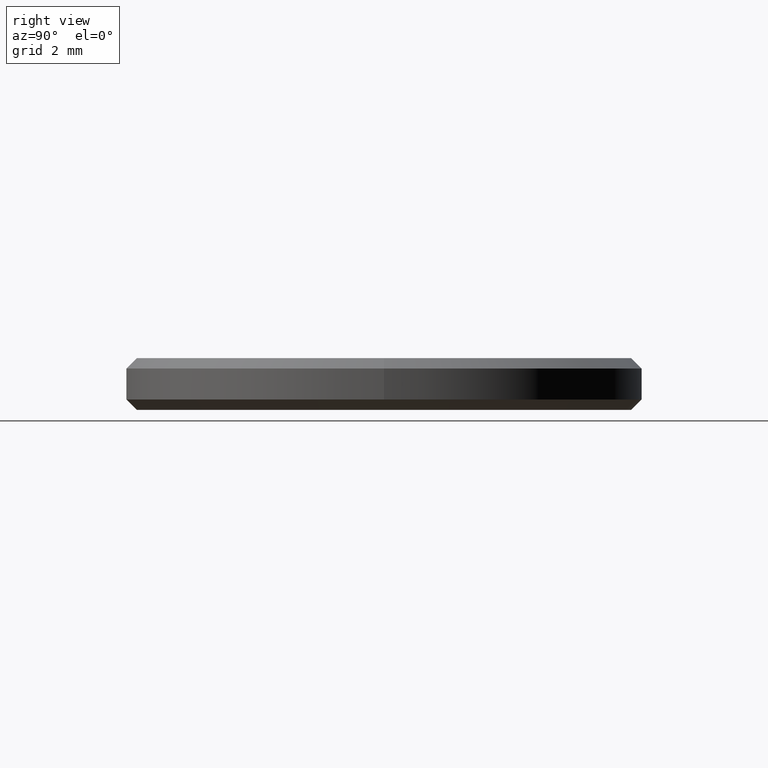
[diagram: clean part render]
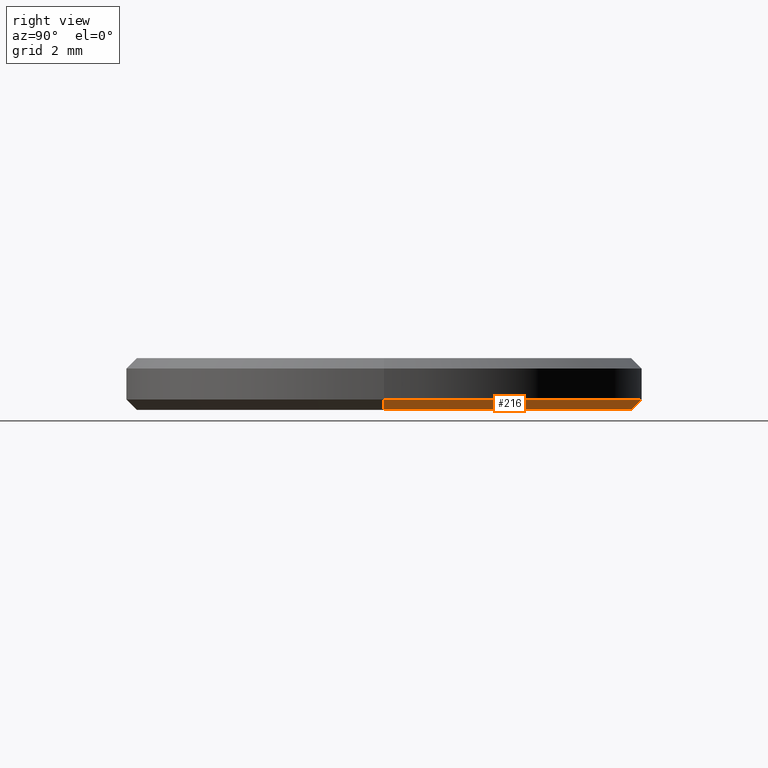
[diagram: same view with one face highlighted and labeled with its STEP entity id]
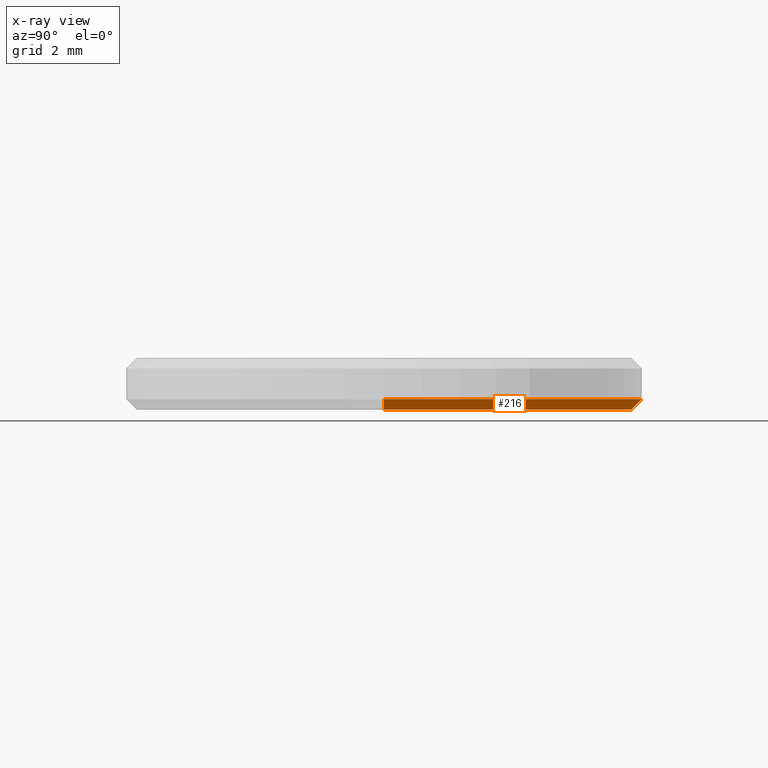
[diagram: x-ray of the same camera — body ghosted, the highlighted face saturated]
A machine part, right view. The second image highlights one B-rep face of the part: STEP entity #216.
The next image is the same camera in x-ray: the body ghosted, the highlighted face saturated — about 0% of this face is hidden behind the body in this view.
In plain terms, the highlighted conical surface has half-angle 45 deg.
Its self-contained STEP definition (entity closure, byte-faithful):
#6 = DIRECTION ( 'NONE',  ( 1.000000000000000000, 0.000000000000000000, 0.000000000000000000 ) ) ;
#7 = FACE_OUTER_BOUND ( 'NONE', #237, .T. ) ;
#25 = DIRECTION ( 'NONE',  ( 1.000000000000000000, 0.000000000000000000, 0.000000000000000000 ) ) ;
#32 = VECTOR ( 'NONE', #195, 1000.000000000000000 ) ;
#37 = VERTEX_POINT ( 'NONE', #57 ) ;
#39 = VERTEX_POINT ( 'NONE', #150 ) ;
#45 = DIRECTION ( 'NONE',  ( -0.000000000000000000, -0.000000000000000000, 1.000000000000000000 ) ) ;
#57 = CARTESIAN_POINT ( 'NONE',  ( 4.799999999999999822, 0.000000000000000000, 0.000000000000000000 ) ) ;
#61 = DIRECTION ( 'NONE',  ( -0.7071067811865490160, 8.659560562354950115E-17, 0.7071067811865459074 ) ) ;
#62 = CARTESIAN_POINT ( 'NONE',  ( -4.799999999999999822, 6.000769315822029754E-16, 0.000000000000000000 ) ) ;
#68 = LINE ( 'NONE', #101, #32 ) ;
#76 = VECTOR ( 'NONE', #61, 1000.000000000000000 ) ;
#95 = VERTEX_POINT ( 'NONE', #62 ) ;
#97 = AXIS2_PLACEMENT_3D ( 'NONE', #104, #45, #6 ) ;
#98 = ORIENTED_EDGE ( 'NONE', *, *, #116, .F. ) ;
#100 = CARTESIAN_POINT ( 'NONE',  ( -5.000000000000000000, 6.123233995736765296E-16, 0.1999999999999996503 ) ) ;
#101 = CARTESIAN_POINT ( 'NONE',  ( 5.000000000000000000, 0.000000000000000000, 0.1999999999999996503 ) ) ;
#104 = CARTESIAN_POINT ( 'NONE',  ( 0.000000000000000000, 0.000000000000000000, 0.1999999999999996503 ) ) ;
#111 = VERTEX_POINT ( 'NONE', #196 ) ;
#116 = EDGE_CURVE ( 'NONE', #39, #111, #183, .T. ) ;
#123 = CARTESIAN_POINT ( 'NONE',  ( 0.000000000000000000, 0.000000000000000000, 0.000000000000000000 ) ) ;
#139 = DIRECTION ( 'NONE',  ( -0.000000000000000000, -0.000000000000000000, 1.000000000000000000 ) ) ;
#141 = LINE ( 'NONE', #100, #76 ) ;
#150 = CARTESIAN_POINT ( 'NONE',  ( 5.000000000000000000, 6.123233995736766282E-16, 0.1999999999999996503 ) ) ;
#155 = ORIENTED_EDGE ( 'NONE', *, *, #189, .F. ) ;
#156 = DIRECTION ( 'NONE',  ( 1.000000000000000000, 0.000000000000000000, 0.000000000000000000 ) ) ;
#174 = ORIENTED_EDGE ( 'NONE', *, *, #182, .F. ) ;
#180 = EDGE_CURVE ( 'NONE', #95, #111, #141, .T. ) ;
#181 = DIRECTION ( 'NONE',  ( -0.000000000000000000, -0.000000000000000000, -1.000000000000000000 ) ) ;
#182 = EDGE_CURVE ( 'NONE', #95, #37, #208, .T. ) ;
#183 = CIRCLE ( 'NONE', #193, 5.000000000000000000 ) ;
#189 = EDGE_CURVE ( 'NONE', #37, #39, #68, .T. ) ;
#193 = AXIS2_PLACEMENT_3D ( 'NONE', #214, #139, #156 ) ;
#195 = DIRECTION ( 'NONE',  ( 0.7071067811865490160, 0.000000000000000000, 0.7071067811865459074 ) ) ;
#196 = CARTESIAN_POINT ( 'NONE',  ( -5.000000000000000000, 0.000000000000000000, 0.1999999999999996503 ) ) ;
#200 = CONICAL_SURFACE ( 'NONE', #97, 5.000000000000000000, 0.7853981633974503884 ) ;
#208 = CIRCLE ( 'NONE', #211, 4.799999999999999822 ) ;
#211 = AXIS2_PLACEMENT_3D ( 'NONE', #123, #181, #25 ) ;
#214 = CARTESIAN_POINT ( 'NONE',  ( 0.000000000000000000, 0.000000000000000000, 0.1999999999999996503 ) ) ;
#216 = ADVANCED_FACE ( 'NONE', ( #7 ), #200, .T. ) ;
#222 = ORIENTED_EDGE ( 'NONE', *, *, #180, .T. ) ;
#237 = EDGE_LOOP ( 'NONE', ( #174, #222, #98, #155 ) ) ;